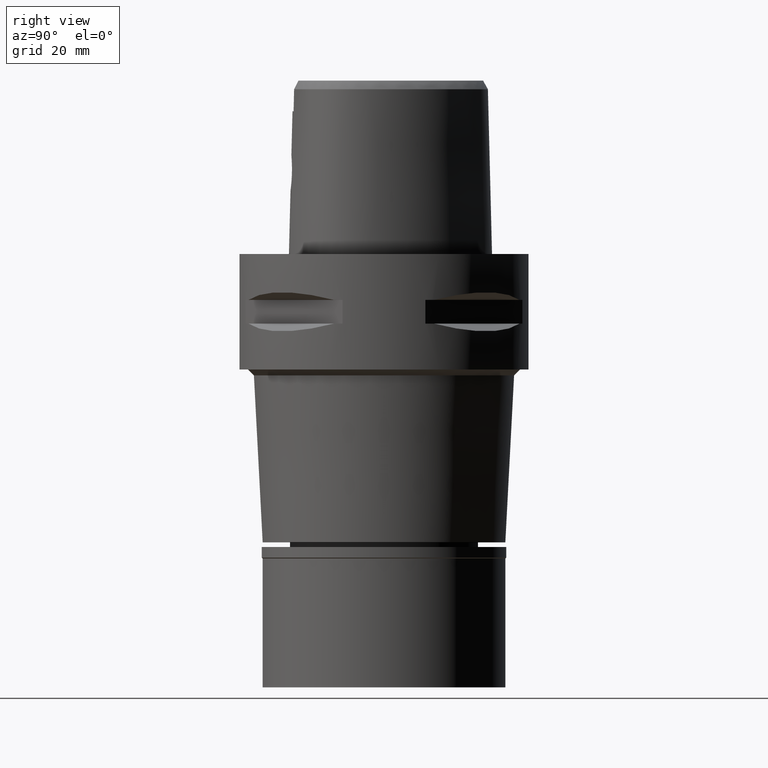
[diagram: clean part render]
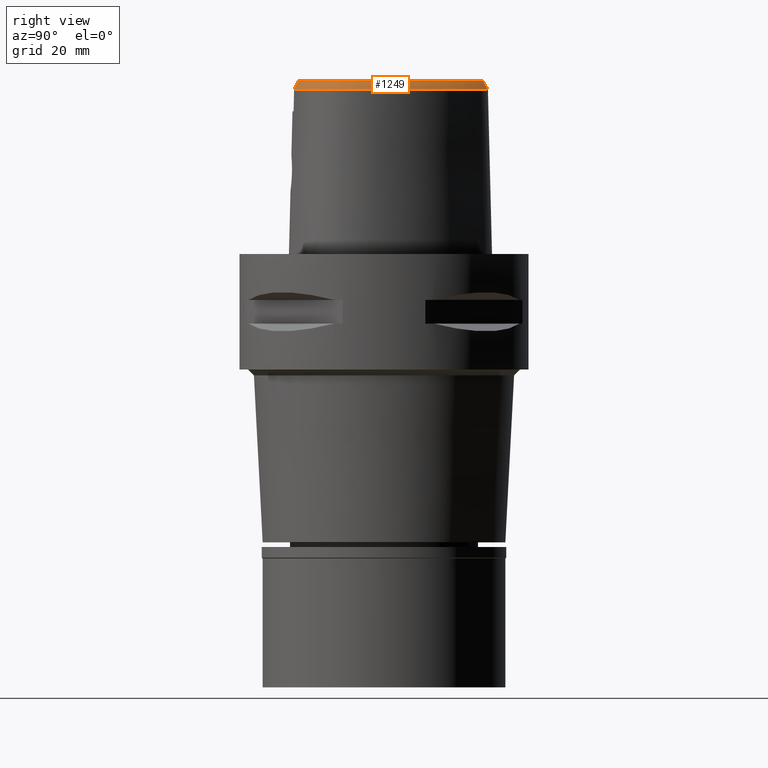
[diagram: same view with one face highlighted and labeled with its STEP entity id]
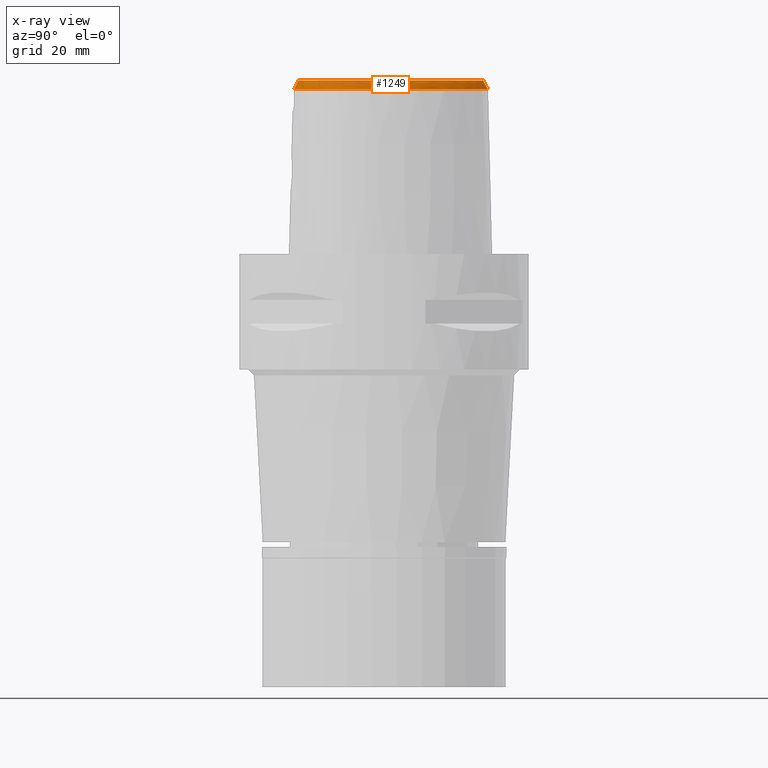
[diagram: x-ray of the same camera — body ghosted, the highlighted face saturated]
A machine part, right view. The second image highlights one B-rep face of the part: STEP entity #1249.
The next image is the same camera in x-ray: the body ghosted, the highlighted face saturated — about 0% of this face is hidden behind the body in this view.
In plain terms, the highlighted face is a freeform B-spline surface patch.
Its self-contained STEP definition (entity closure, byte-faithful):
#10 = CARTESIAN_POINT ( 'NONE',  ( 4.159771979224698768, -14.59766906204499826, 30.00000000000319744 ) ) ;
#30 = CARTESIAN_POINT ( 'NONE',  ( 14.55828366952990294, 4.114142377746004442, 30.00000000000303046 ) ) ;
#37 = CARTESIAN_POINT ( 'NONE',  ( 13.58518145072999950, -11.07622484804999985, 28.97165435128000155 ) ) ;
#52 = CARTESIAN_POINT ( 'NONE',  ( 15.90185233182718783, -0.6139199331565132756, 30.00000000000169820 ) ) ;
#60 = CARTESIAN_POINT ( 'NONE',  ( 5.636620511267000033, -15.23490497002999966, 28.39430531020000004 ) ) ;
#77 = CARTESIAN_POINT ( 'NONE',  ( 10.27891984618185184, 11.24296481357878541, 29.99999999999908340 ) ) ;
#86 = CARTESIAN_POINT ( 'NONE',  ( 3.198393493288000045, -15.30703942563000020, 28.97165483821000009 ) ) ;
#101 = EDGE_CURVE ( 'NONE', #3911, #1723, #3267, .T. ) ;
#107 = CARTESIAN_POINT ( 'NONE',  ( 6.724944731042999280, -14.30154928496000011, 29.54900578471999850 ) ) ;
#136 = CARTESIAN_POINT ( 'NONE',  ( 14.02754553531999981, -9.659741869295000782, 30.12635489120000187 ) ) ;
#162 = CARTESIAN_POINT ( 'NONE',  ( 15.25956074493000081, 2.950734948411999792, 29.54900468772000366 ) ) ;
#185 = CARTESIAN_POINT ( 'NONE',  ( 16.26668211954000043, -6.688728786193999909, 28.97165438117999869 ) ) ;
#212 = CARTESIAN_POINT ( 'NONE',  ( 15.95486192527999947, -6.601876243376000097, 29.54900466027000050 ) ) ;
#239 = CARTESIAN_POINT ( 'NONE',  ( 14.79277849044999904, 4.208539887346999464, 29.54900463723999948 ) ) ;
#265 = CARTESIAN_POINT ( 'NONE',  ( 11.83689900205000001, 10.73392656281000157, 28.39430492946000228 ) ) ;
#267 = DIRECTION ( 'NONE',  ( -2.026167864873034661E-11, -0.4887572537803078765, 0.8724198226067148010 ) ) ;
#292 = CARTESIAN_POINT ( 'NONE',  ( 5.386177464945999915, 15.80433128279000066, 29.54900646324999869 ) ) ;
#318 = CARTESIAN_POINT ( 'NONE',  ( 3.162535832260999769, 16.84371059171000340, 29.54900440379999793 ) ) ;
#342 = CARTESIAN_POINT ( 'NONE',  ( 11.57865496055999976, 10.53891767498000043, 28.97165491105999990 ) ) ;
#367 = CARTESIAN_POINT ( 'NONE',  ( 13.66559393375393050, -10.18115111193445976, 29.99999999999819877 ) ) ;
#368 = CARTESIAN_POINT ( 'NONE',  ( 13.45727162376000052, 8.334142289655000368, 28.39430420535000366 ) ) ;
#395 = CARTESIAN_POINT ( 'NONE',  ( 9.420872132874164251, 12.20574557692856210, 30.00000000001033840 ) ) ;
#404 = CARTESIAN_POINT ( 'NONE',  ( 15.84228676733546948, 3.460033425849510902, 28.52071728562183495 ) ) ;
#419 = CARTESIAN_POINT ( 'NONE',  ( 8.816245487876447129, -13.33426548781124943, 30.00000000000095568 ) ) ;
#420 = CARTESIAN_POINT ( 'NONE',  ( 0.04120385087931000001, 17.73512502171999827, 28.97165461464999936 ) ) ;
#426 = CARTESIAN_POINT ( 'NONE',  ( 6.810475384274000454, -14.61365626473999946, 28.97165694513000034 ) ) ;
#448 = CARTESIAN_POINT ( 'NONE',  ( 14.91798220929000074, -9.558002400913998997, 28.97165436094000057 ) ) ;
#466 = CARTESIAN_POINT ( 'NONE',  ( 1.774127352510906253, 16.97169788998893125, 30.00000000000295231 ) ) ;
#467 = CARTESIAN_POINT ( 'NONE',  ( -0.3198664786384000092, 17.40150216721999854, 29.54900469169000132 ) ) ;
#475 = CARTESIAN_POINT ( 'NONE',  ( 12.61028687047000041, -11.07000997088999839, 30.12635494367000177 ) ) ;
#499 = CARTESIAN_POINT ( 'NONE',  ( 5.499981877328000479, -14.60227427816999857, 29.54900499958999660 ) ) ;
#500 = CARTESIAN_POINT ( 'NONE',  ( 13.06460231238459713, -11.91950040983860326, 28.52071728562183495 ) ) ;
#519 = CARTESIAN_POINT ( 'NONE',  ( 13.22519881204000036, -11.82152390511999940, 28.39430404735999858 ) ) ;
#546 = CARTESIAN_POINT ( 'NONE',  ( 16.79005012960000087, -0.4683175930396000219, 28.39430526051000214 ) ) ;
#568 = CARTESIAN_POINT ( 'NONE',  ( 15.87207202815999985, 3.159821957095999778, 28.39430419984000054 ) ) ;
#591 = CARTESIAN_POINT ( 'NONE',  ( 14.97963747158000025, -8.215225103173999344, 30.12635496006999958 ) ) ;
#617 = CARTESIAN_POINT ( 'NONE',  ( 17.02549094405999597, -3.547194155409000071, 28.39430443214000022 ) ) ;
#647 = CARTESIAN_POINT ( 'NONE',  ( 16.56781669303000015, 0.6875131073016998995, 28.39430811817000233 ) ) ;
#661 = ORIENTED_EDGE ( 'NONE', *, *, #2614, .T. ) ;
#670 = CARTESIAN_POINT ( 'NONE',  ( 10.71967452736000048, 11.61439529569000051, 28.97165411231999954 ) ) ;
#696 = CARTESIAN_POINT ( 'NONE',  ( 1.759555337810000175, 16.90237092450999867, 30.12635490652999692 ) ) ;
#722 = CARTESIAN_POINT ( 'NONE',  ( 7.655098407063000820, 13.78990592505999935, 30.12635488931000083 ) ) ;
#742 = CARTESIAN_POINT ( 'NONE',  ( 9.840854231079999792, 12.60052413775999902, 28.97165558247999684 ) ) ;
#762 = CARTESIAN_POINT ( 'NONE',  ( 13.17991634394000044, 8.167437240502000151, 28.97165444731000150 ) ) ;
#771 = CARTESIAN_POINT ( 'NONE',  ( 4.422474504765450121, 17.08283549833562276, 28.52071728562183495 ) ) ;
#789 = CARTESIAN_POINT ( 'NONE',  ( 11.92667412982082276, 9.061218325782515848, 30.00000000000228795 ) ) ;
#795 = CARTESIAN_POINT ( 'NONE',  ( 2.403150904922999764, -15.06014885979999995, 29.54900493906999870 ) ) ;
#797 = CARTESIAN_POINT ( 'NONE',  ( 8.789956624994001544, -13.26849772566999874, 30.12635493196999903 ) ) ;
#798 = CARTESIAN_POINT ( 'NONE',  ( 1.893775678556270714, 17.84807068955530696, 28.52071728562183495 ) ) ;
#823 = CARTESIAN_POINT ( 'NONE',  ( 11.67356831991000021, -12.53663666774999896, 28.97165483650000084 ) ) ;
#833 = CARTESIAN_POINT ( 'NONE',  ( 15.71128456931488238, -6.534031654962921820, 30.00000000000482103 ) ) ;
#834 = CARTESIAN_POINT ( 'NONE',  ( 0.04262583084490000063, 18.05879023273999806, 28.39430446665000218 ) ) ;
#843 = CARTESIAN_POINT ( 'NONE',  ( 11.03515697932999906, -13.28537262831000021, 28.39430411696999812 ) ) ;
#862 = CARTESIAN_POINT ( 'NONE',  ( 1.151658985937999979, 17.00827232560000013, 30.12635495374999905 ) ) ;
#868 = CARTESIAN_POINT ( 'NONE',  ( 1.969039923823999949, -15.41851509117999974, 28.97165501015999922 ) ) ;
#870 = CARTESIAN_POINT ( 'NONE',  ( 6.896006037505000741, -14.92576324452999970, 28.39430810553999862 ) ) ;
#871 = CARTESIAN_POINT ( 'NONE',  ( 15.58740368722119385, -8.999391713746996757, 28.52071728562183495 ) ) ;
#885 = CARTESIAN_POINT ( 'NONE',  ( -0.5216482916904000566, 18.03863136296000036, 28.39430385685000147 ) ) ;
#893 = CARTESIAN_POINT ( 'NONE',  ( 13.02022816484999979, -11.57101926037000084, 28.97165434612999846 ) ) ;
#914 = CARTESIAN_POINT ( 'NONE',  ( 16.01507188675000037, -4.368455456148000238, 30.12635485425000326 ) ) ;
#941 = CARTESIAN_POINT ( 'NONE',  ( 14.95330510330999907, 2.846191444068999932, 30.12635493167000078 ) ) ;
#969 = CARTESIAN_POINT ( 'NONE',  ( 15.93604469766000342, 0.5468705579907999770, 29.54900578826999791 ) ) ;
#990 = CARTESIAN_POINT ( 'NONE',  ( 16.57063897434999689, -5.232310556972000093, 28.97165449395000181 ) ) ;
#996 = ORIENTED_EDGE ( 'NONE', *, *, #101, .F. ) ;
#1016 = CARTESIAN_POINT ( 'NONE',  ( 16.57850231379999784, -6.775581329011999721, 28.39430410208999689 ) ) ;
#1039 = CARTESIAN_POINT ( 'NONE',  ( 8.954730154375999618, 13.49146526905999899, 28.97165608609999765 ) ) ;
#1042 = CARTESIAN_POINT ( 'NONE',  ( -2.866360985331999843E-11, 17.98202997909999823, 28.52071728569000086 ) ) ;
#1063 = CARTESIAN_POINT ( 'NONE',  ( 12.62520578429000118, 7.834027142196998916, 30.12635493123999808 ) ) ;
#1076 = VERTEX_POINT ( 'NONE', #1424 ) ;
#1087 = CARTESIAN_POINT ( 'NONE',  ( 10.96713008464000083, 11.82292975005000102, 28.39430368228000034 ) ) ;
#1099 = CARTESIAN_POINT ( 'NONE',  ( 2.406543924163999648, -14.80491841401999942, 30.00000000000000000 ) ) ;
#1116 = CARTESIAN_POINT ( 'NONE',  ( 3.872355832395999897, 16.56753798631000407, 29.54900495113999526 ) ) ;
#1134 = CARTESIAN_POINT ( 'NONE',  ( 2.538962679605447192, -14.79292722369866375, 30.00000000000500933 ) ) ;
#1135 = CARTESIAN_POINT ( 'NONE',  ( 13.32121149051000053, 6.603679363826000071, 30.12635490347999934 ) ) ;
#1154 = CARTESIAN_POINT ( 'NONE',  ( 15.02033012161443182, 2.869071121501648669, 30.00000000000547473 ) ) ;
#1155 = CARTESIAN_POINT ( 'NONE',  ( 0.5642281556781999496, 17.06938930771000074, 30.12635494891999954 ) ) ;
#1164 = CARTESIAN_POINT ( 'NONE',  ( 14.77927496121000139, -10.27451375865999950, 28.39430471401000133 ) ) ;
#1181 = CARTESIAN_POINT ( 'NONE',  ( 16.11273027396801893, -2.627494158581237915, 30.00000000000432010 ) ) ;
#1189 = CARTESIAN_POINT ( 'NONE',  ( 2.082322002696000318, -14.76174497169000155, 30.12635486047000200 ) ) ;
#1191 = CARTESIAN_POINT ( 'NONE',  ( 4.148579474288999869, -14.52773712303000053, 30.12635497627000092 ) ) ;
#1202 = CARTESIAN_POINT ( 'NONE',  ( 2.412811123804728286, 16.81558681049768822, 30.00000000000554579 ) ) ;
#1209 = CARTESIAN_POINT ( 'NONE',  ( 10.13792928109999991, -13.74039216949999975, 28.39430394341000152 ) ) ;
#1221 = CARTESIAN_POINT ( 'NONE',  ( 15.29323375805328666, -7.718923543003030296, 29.99999999999998224 ) ) ;
#1229 = CARTESIAN_POINT ( 'NONE',  ( 12.00801880913000197, -11.53244931723000022, 30.12635486929000095 ) ) ;
#1230 = CARTESIAN_POINT ( 'NONE',  ( 3.168920890822999770, -15.55911073834000113, 28.52071374672999582 ) ) ;
#1249 = ADVANCED_FACE ( 'NONE', ( #2762 ), #4239, .F. ) ;
#1258 = CARTESIAN_POINT ( 'NONE',  ( 11.33007028261000038, -11.98798250957999834, 30.12635488341000212 ) ) ;
#1280 = CARTESIAN_POINT ( 'NONE',  ( 16.75475007621000145, -6.053512447975999855, 28.39430399984999909 ) ) ;
#1298 = CARTESIAN_POINT ( 'NONE',  ( 16.15132240152000165, -0.5730242835304000248, 29.54900498562999900 ) ) ;
#1325 = CARTESIAN_POINT ( 'NONE',  ( 16.36604284700000278, -7.448001050997000050, 28.39430445674999959 ) ) ;
#1349 = CARTESIAN_POINT ( 'NONE',  ( 16.25016504059000155, -5.186924622078000091, 29.54900470971999837 ) ) ;
#1375 = CARTESIAN_POINT ( 'NONE',  ( 15.09297150437999946, 4.329384658261000496, 28.97165432866999879 ) ) ;
#1401 = CARTESIAN_POINT ( 'NONE',  ( 10.07664731190000040, 12.82216704468000046, 28.39430597783999843 ) ) ;
#1424 = CARTESIAN_POINT ( 'NONE',  ( -2.866360985331999843E-11, 17.98202997909999823, 28.52071728569000086 ) ) ;
#1425 = CARTESIAN_POINT ( 'NONE',  ( 3.168920890822999770, -15.55911073834000113, 28.52071374672999582 ) ) ;
#1426 = CARTESIAN_POINT ( 'NONE',  ( 6.188419776721000076, 15.30380776327000092, 29.54900575595999968 ) ) ;
#1449 = CARTESIAN_POINT ( 'NONE',  ( 10.22476341278999890, 11.19732638698000038, 30.12635497239000060 ) ) ;
#1478 = CARTESIAN_POINT ( 'NONE',  ( 7.015729644337999282, 14.71660703144999971, 29.54900451399999994 ) ) ;
#1501 = CARTESIAN_POINT ( 'NONE',  ( 6.658132732489098871, -14.05774790738736790, 30.00000000000192912 ) ) ;
#1502 = CARTESIAN_POINT ( 'NONE',  ( 4.613421561495000489, 16.22342573945000055, 29.54900611080000061 ) ) ;
#1523 = CARTESIAN_POINT ( 'NONE',  ( 14.01089202938897849, 5.377385268371448923, 29.99999999999844391 ) ) ;
#1528 = CARTESIAN_POINT ( 'NONE',  ( 2.107581542165999799, -15.08421296649999910, 29.54900494186000159 ) ) ;
#1545 = CARTESIAN_POINT ( 'NONE',  ( 16.04058509949097910, -1.654113685488525887, 30.00000000000254374 ) ) ;
#1556 = CARTESIAN_POINT ( 'NONE',  ( 13.61391664784999911, -10.13269555792999910, 30.12635493747999860 ) ) ;
#1574 = CARTESIAN_POINT ( 'NONE',  ( 16.08569500454932921, -4.373922630229363229, 30.00000000000024869 ) ) ;
#1575 = CARTESIAN_POINT ( 'NONE',  ( 1.241429157331000122, 17.64942372610000021, 28.97165426405999966 ) ) ;
#1583 = CARTESIAN_POINT ( 'NONE',  ( 14.98044185085000102, -8.874149417314001198, 29.54900472272999679 ) ) ;
#1597 = CARTESIAN_POINT ( 'NONE',  ( 12.04928217776110522, -11.59002493206824624, 30.00000000000489209 ) ) ;
#1605 = CARTESIAN_POINT ( 'NONE',  ( 7.761316247013999359, -13.64708964559000037, 30.12635468139999873 ) ) ;
#1606 = CARTESIAN_POINT ( 'NONE',  ( 15.07117004567324869, -9.793013887526587524, 28.52071728562183495 ) ) ;
#1628 = CARTESIAN_POINT ( 'NONE',  ( 10.72582308267999984, -12.71677753964999980, 29.54900466443999818 ) ) ;
#1640 = ORIENTED_EDGE ( 'NONE', *, *, #3937, .T. ) ;
#1658 = CARTESIAN_POINT ( 'NONE',  ( 16.37826085461999881, -3.537318855253999583, 29.54900475296999929 ) ) ;
#1683 = CARTESIAN_POINT ( 'NONE',  ( 15.95150407107000312, 1.813425260090999913, 28.97165666705000220 ) ) ;
#1701 = CARTESIAN_POINT ( 'NONE',  ( 16.36528284094999819, -2.616024711796999913, 29.54900467897000027 ) ) ;
#1723 = VERTEX_POINT ( 'NONE', #1099 ) ;
#1727 = CARTESIAN_POINT ( 'NONE',  ( 15.82261077549999762, -7.947366537628000493, 28.97165467794000193 ) ) ;
#1749 = CARTESIAN_POINT ( 'NONE',  ( 15.53330887387000026, -9.211061806326998891, 28.39430432446999930 ) ) ;
#1773 = CARTESIAN_POINT ( 'NONE',  ( 14.17846492819000126, 7.059273871731999606, 28.39430455808999909 ) ) ;
#1801 = CARTESIAN_POINT ( 'NONE',  ( 5.712691861914000135, 16.36324406654000185, 28.39431052132000133 ) ) ;
#1825 = CARTESIAN_POINT ( 'NONE',  ( 6.008678730674999358, 15.03466828824999979, 30.12635463238000000 ) ) ;
#1848 = CARTESIAN_POINT ( 'NONE',  ( 9.177964260926998463, 13.72576025739000016, 28.39430676420999689 ) ) ;
#1873 = CARTESIAN_POINT ( 'NONE',  ( 10.60500548644038687, -12.49469941439547860, 29.99999999999583267 ) ) ;
#1874 = CARTESIAN_POINT ( 'NONE',  ( 13.60696263640000048, 6.755544199794999649, 29.54900478835000044 ) ) ;
#1898 = CARTESIAN_POINT ( 'NONE',  ( 0.1912597614439547344, 17.15328888648438266, 30.00000000000301981 ) ) ;
#1899 = CARTESIAN_POINT ( 'NONE',  ( 1.286314243027000259, 17.96999942634000291, 28.39430391922000041 ) ) ;
#1906 = CARTESIAN_POINT ( 'NONE',  ( 16.99625257117610744, -3.273868232426860647, 28.52071728562183495 ) ) ;
#1908 = CARTESIAN_POINT ( 'NONE',  ( 2.674237079597857392, -15.00654560863571341, 29.59847386627898302 ) ) ;
#1921 = CARTESIAN_POINT ( 'NONE',  ( 13.38374903490436907, 6.636915464740826387, 30.00000000000798650 ) ) ;
#1929 = CARTESIAN_POINT ( 'NONE',  ( 5.431662560358000214, -14.28595893223999980, 30.12635484428999888 ) ) ;
#1930 = CARTESIAN_POINT ( 'NONE',  ( 13.75951381385726258, 7.944084035686027612, 28.52071728562183495 ) ) ;
#1945 = CARTESIAN_POINT ( 'NONE',  ( 3.078265684544093439, 16.60532678262845252, 30.00000000000095213 ) ) ;
#1946 = CARTESIAN_POINT ( 'NONE',  ( 1.892722379753999817, 17.53591866029999835, 28.97165464836000126 ) ) ;
#1957 = CARTESIAN_POINT ( 'NONE',  ( 12.81525751765999921, -11.32051461562999961, 29.54900464490000189 ) ) ;
#1965 = CARTESIAN_POINT ( 'NONE',  ( -6.301949014321000775E-11, 17.15328888647999861, 30.00000000000000000 ) ) ;
#1974 = CARTESIAN_POINT ( 'NONE',  ( 14.44767169632900305, -9.224476417585497856, 29.99999999999864642 ) ) ;
#1975 = CARTESIAN_POINT ( 'NONE',  ( 0.6322687859860999238, 18.03813873621999875, 28.39430398061000105 ) ) ;
#1983 = CARTESIAN_POINT ( 'NONE',  ( 10.00048217047999977, -13.44739137544999963, 28.97165427954999828 ) ) ;
#1984 = CARTESIAN_POINT ( 'NONE',  ( -2.866360985331999843E-11, 17.98202997909999823, 28.52071728569000086 ) ) ;
#1998 = CARTESIAN_POINT ( 'NONE',  ( 0.03835989094812999878, 17.08779459967000136, 30.12635491066999904 ) ) ;
#2004 = CARTESIAN_POINT ( 'NONE',  ( 4.199721090764999332, -14.84727528049000078, 29.54900452851999759 ) ) ;
#2005 = CARTESIAN_POINT ( 'NONE',  ( 11.33338046473958549, -13.08225241901623015, 28.52071728562183495 ) ) ;
#2025 = CARTESIAN_POINT ( 'NONE',  ( 13.36430192263999928, -10.83961624512000022, 29.54900464714999941 ) ) ;
#2049 = CARTESIAN_POINT ( 'NONE',  ( 15.32850879183000004, 1.637991374402999911, 30.12635465847999683 ) ) ;
#2075 = CARTESIAN_POINT ( 'NONE',  ( 16.06076539774999645, -7.340359519163000002, 28.97165460831000061 ) ) ;
#2095 = CARTESIAN_POINT ( 'NONE',  ( 15.75548794849999901, -7.232717987330000042, 29.54900475987999897 ) ) ;
#2112 = VERTEX_POINT ( 'NONE', #1965 ) ;
#2125 = CARTESIAN_POINT ( 'NONE',  ( 15.64000643144999891, 1.725708317247000023, 29.54900566277000351 ) ) ;
#2128 = LINE ( 'NONE', #1042, #4132 ) ;
#2151 = CARTESIAN_POINT ( 'NONE',  ( 16.66046457151999860, -4.418417483715999516, 28.97165507380999827 ) ) ;
#2174 = CARTESIAN_POINT ( 'NONE',  ( 7.406187682724999277, 15.23283689185999989, 28.39430358134000087 ) ) ;
#2201 = CARTESIAN_POINT ( 'NONE',  ( 3.378295903450000193, 17.45405374418999855, 28.39430318899000127 ) ) ;
#2229 = CARTESIAN_POINT ( 'NONE',  ( 3.745042983010999915, 16.26995953691999830, 30.12635485787000178 ) ) ;
#2239 = CARTESIAN_POINT ( 'NONE',  ( 3.168920890822999770, -15.55911073834000113, 28.52071374672999582 ) ) ;
#2251 = CARTESIAN_POINT ( 'NONE',  ( 11.36765809995727494, -12.04801986072731168, 30.00000000000228795 ) ) ;
#2252 = CARTESIAN_POINT ( 'NONE',  ( 3.999668681780000234, 16.86511643571000008, 28.97165504441999673 ) ) ;
#2275 = CARTESIAN_POINT ( 'NONE',  ( 0.5691917915716130372, 17.14006060248783925, 30.00000000000531841 ) ) ;
#2276 = CARTESIAN_POINT ( 'NONE',  ( 12.67257732747999910, 9.564795333159000990, 28.39430544884000085 ) ) ;
#2285 = CARTESIAN_POINT ( 'NONE',  ( 7.523733068098718668, 15.26501041873592790, 28.52071728562183495 ) ) ;
#2302 = CARTESIAN_POINT ( 'NONE',  ( 15.51702143705241355, -7.148634146068893358, 29.99999999999501554 ) ) ;
#2310 = CARTESIAN_POINT ( 'NONE',  ( 3.236514091057999920, -15.62830462869999693, 28.39430481572000176 ) ) ;
#2334 = CARTESIAN_POINT ( 'NONE',  ( 13.14342239453999994, -10.60300764219000058, 30.12635494302999817 ) ) ;
#2349 = CARTESIAN_POINT ( 'NONE',  ( -0.3077187545992999818, 17.07822620253000068, 30.12635493055000069 ) ) ;
#2361 = CARTESIAN_POINT ( 'NONE',  ( 5.568301194296999768, -14.91858962410000089, 28.97165515490000232 ) ) ;
#2388 = CARTESIAN_POINT ( 'NONE',  ( 14.32229961077000091, -10.79691559800999912, 28.39430412588999886 ) ) ;
#2389 = CARTESIAN_POINT ( 'NONE',  ( 5.902447799198637490, -15.16907841529767964, 28.52071728562183139 ) ) ;
#2412 = CARTESIAN_POINT ( 'NONE',  ( 8.910077630152999362, -13.56900861999000085, 29.54900468662999913 ) ) ;
#2433 = CARTESIAN_POINT ( 'NONE',  ( 15.80414420152999710, -5.855335048104000961, 30.12635494739999942 ) ) ;
#2459 = CARTESIAN_POINT ( 'NONE',  ( 15.55493366657000109, -8.512211295892001317, 28.97165421263999718 ) ) ;
#2481 = CARTESIAN_POINT ( 'NONE',  ( 15.39316451831999899, 4.450229429175000639, 28.39430402010000165 ) ) ;
#2503 = CARTESIAN_POINT ( 'NONE',  ( 16.47068626555999771, -0.5206709382849999956, 28.97165512307000057 ) ) ;
#2531 = CARTESIAN_POINT ( 'NONE',  ( 16.33776822912999904, -4.393436469931999433, 29.54900496402999721 ) ) ;
#2554 = CARTESIAN_POINT ( 'NONE',  ( 6.820500625143999684, 14.45849210125000006, 30.12635498032999948 ) ) ;
#2576 = CARTESIAN_POINT ( 'NONE',  ( 2.656482849309999672, 17.68220174901000163, 28.39430400779999886 ) ) ;
#2578 = B_SPLINE_CURVE_WITH_KNOTS ( 'NONE', 3,
 ( #3874, #1898, #2275, #3030, #466, #1202, #1945, #4257, #3803, #3453, #2650, #3125, #4584, #3776, #395, #77, #3103, #789, #4649, #1921, #1523, #30, #1154, #3501, #3077, #52, #1545, #1181, #3475, #1574, #4629, #4284, #833, #2302, #1221, #3826, #2676, #1974, #3433, #367, #3051, #2751, #1597, #2251, #1873, #3408, #419, #4932, #1501, #4562, #10, #2701, #1134, #4186 ),
 .UNSPECIFIED., .F., .F.,
 ( 4, 1, 1, 1, 1, 1, 1, 1, 1, 1, 1, 1, 1, 1, 1, 1, 1, 1, 1, 1, 1, 1, 1, 1, 1, 1, 1, 1, 1, 1, 1, 1, 1, 1, 1, 1, 1, 1, 1, 1, 1, 1, 1, 1, 1, 1, 1, 1, 1, 1, 1, 4 ),
 ( 0.0000000000000000000, 0.01988587058640001182, 0.03977174117009996124, 0.05965761175399997285, 0.07954348233780006439, 0.09942935292160004490, 0.1193152235055000565, 0.1392010940893000370, 0.1590869646731999376, 0.1789728352568999981, 0.1988587058408000097, 0.2187445764247000213, 0.2386304470083999707, 0.2585163175922999823, 0.2784021881761000738, 0.2982880587598999433, 0.3181739293438000660, 0.3380597999276000465, 0.3579456705113999160, 0.3778315410952000075, 0.3977174116791000191, 0.4176032822630000307, 0.4374891528466999802, 0.4573750234305999918, 0.4772608940143999723, 0.4971467645981999528, 0.5170326351820999644, 0.5369185057659000559, 0.5568043763497000365, 0.5766902469335999371, 0.5965761175174000286, 0.6164619881012000091, 0.6363478586849999896, 0.6562337292689000012, 0.6761195998528000128, 0.6960054704364999623, 0.7158913410203999739, 0.7357772116042000654, 0.7556630821880000459, 0.7755489527718999465, 0.7954348233557000381, 0.8153206939395000186, 0.8352065645232999991, 0.8550924351072000107, 0.8749783056909999912, 0.8948641762747999717, 0.9147500468586799993, 0.9346359174424899718, 0.9545217880263200394, 0.9744076586101599879, 0.9942935291939859477, 1.000000000000000000 ),
 .UNSPECIFIED. ) ;
#2606 = CARTESIAN_POINT ( 'NONE',  ( 4.759193446332000477, 16.51239868655999743, 28.97165768864000057 ) ) ;
#2614 = EDGE_CURVE ( 'NONE', #1076, #2112, #2128, .T. ) ;
#2630 = CARTESIAN_POINT ( 'NONE',  ( 10.47221897007000102, 11.40586084133999911, 29.54900454234999785 ) ) ;
#2650 = CARTESIAN_POINT ( 'NONE',  ( 6.048015628560602153, 15.09357031579874864, 30.00000000000359535 ) ) ;
#2651 = CARTESIAN_POINT ( 'NONE',  ( 11.06216687758999839, 10.14889989933000081, 30.12635487425000136 ) ) ;
#2676 = CARTESIAN_POINT ( 'NONE',  ( 14.76450668991192572, -8.742560395149837404, 30.00000000000431655 ) ) ;
#2680 = CARTESIAN_POINT ( 'NONE',  ( 2.158100621106000094, -15.72914895611000219, 28.39430510466000257 ) ) ;
#2682 = CARTESIAN_POINT ( 'NONE',  ( 14.38988367714999939, -9.183495394643999887, 30.12635494183999896 ) ) ;
#2701 = CARTESIAN_POINT ( 'NONE',  ( 3.130495111450359857, -14.73481892792100645, 30.00000000000239453 ) ) ;
#2710 = CARTESIAN_POINT ( 'NONE',  ( 7.966932998891000928, -14.26080317577000045, 28.97165648060000009 ) ) ;
#2735 = CARTESIAN_POINT ( 'NONE',  ( 11.50181930126000118, -12.26230958865999909, 29.54900485996000015 ) ) ;
#2751 = CARTESIAN_POINT ( 'NONE',  ( 12.65514534656895762, -11.12483370674097216, 30.00000000000779465 ) ) ;
#2762 = FACE_OUTER_BOUND ( 'NONE', #3331, .T. ) ;
#2764 = CARTESIAN_POINT ( 'NONE',  ( 9.030198635310998867, -13.86951951431000118, 28.97165444128000189 ) ) ;
#2782 = CARTESIAN_POINT ( 'NONE',  ( 0.6095885758834999057, 17.71522226005000178, 28.97165430337999936 ) ) ;
#2793 = CARTESIAN_POINT ( 'NONE',  ( 12.19656242694999904, -11.79552804977000058, 29.54900491036999810 ) ) ;
#2813 = CARTESIAN_POINT ( 'NONE',  ( 16.68859282264000043, -2.601341880914000093, 28.97165442383000311 ) ) ;
#2834 = CARTESIAN_POINT ( 'NONE',  ( 15.56581638655000077, 3.055278452754000451, 28.97165444378000032 ) ) ;
#2863 = CARTESIAN_POINT ( 'NONE',  ( 16.98316091389999727, -4.443398497499999600, 28.39430518357999844 ) ) ;
#2888 = CARTESIAN_POINT ( 'NONE',  ( 16.89111290810999932, -5.277696491865000006, 28.39430427817000435 ) ) ;
#2912 = CARTESIAN_POINT ( 'NONE',  ( 13.94669030428000056, 5.347489695137000787, 30.12635485443000150 ) ) ;
#2940 = CARTESIAN_POINT ( 'NONE',  ( 8.074561966436000660, 14.28283608100000102, 28.97165478852999598 ) ) ;
#2962 = CARTESIAN_POINT ( 'NONE',  ( 2.393636181563999710, 16.74739140802999771, 30.12635494677999759 ) ) ;
#2985 = CARTESIAN_POINT ( 'NONE',  ( 8.731496047824998996, 13.25717028072000048, 29.54900540799000197 ) ) ;
#3009 = CARTESIAN_POINT ( 'NONE',  ( 7.210958663531999768, 14.97472196164999936, 28.97165404767000041 ) ) ;
#3030 = CARTESIAN_POINT ( 'NONE',  ( 1.161482229273270717, 17.07843133414447578, 30.00000000000506972 ) ) ;
#3031 = CARTESIAN_POINT ( 'NONE',  ( 4.126981531164999772, 17.16269488509999874, 28.39430513769999820 ) ) ;
#3051 = CARTESIAN_POINT ( 'NONE',  ( 13.19176257967298049, -10.65479018522654009, 30.00000000000042988 ) ) ;
#3052 = CARTESIAN_POINT ( 'NONE',  ( -0.4854021692768000218, 17.39278544644000135, 29.54900459138999835 ) ) ;
#3060 = CARTESIAN_POINT ( 'NONE',  ( 14.52869848591999968, -10.06958979554000067, 28.97165477307000003 ) ) ;
#3061 = CARTESIAN_POINT ( 'NONE',  ( 16.85489147434090285, -5.354527548487958200, 28.52071728562183495 ) ) ;
#3077 = CARTESIAN_POINT ( 'NONE',  ( 15.68929135223803861, 0.4919393172822459914, 30.00000000000551736 ) ) ;
#3085 = CARTESIAN_POINT ( 'NONE',  ( 1.922433702898000085, -14.77329646349000036, 30.12635486206999857 ) ) ;
#3087 = CARTESIAN_POINT ( 'NONE',  ( 7.864124622952999744, -13.95394641067999864, 29.54900558099999941 ) ) ;
#3103 = CARTESIAN_POINT ( 'NONE',  ( 11.11868440496116150, 10.19157821280415455, 30.00000000000159872 ) ) ;
#3112 = CARTESIAN_POINT ( 'NONE',  ( 14.70400833935000051, -8.705693222807999732, 30.12635492185999908 ) ) ;
#3125 = CARTESIAN_POINT ( 'NONE',  ( 6.863227115065352990, 14.51498137220609230, 29.99999999999675282 ) ) ;
#3126 = CARTESIAN_POINT ( 'NONE',  ( -0.3441619267167999596, 18.04805409660000137, 28.39430421396000170 ) ) ;
#3132 = CARTESIAN_POINT ( 'NONE',  ( 9.725587949250000364, -12.86138978735000116, 30.12635495183999979 ) ) ;
#3133 = CARTESIAN_POINT ( 'NONE',  ( 3.738627708319794962, -15.49270856215552783, 28.52071728562183850 ) ) ;
#3159 = CARTESIAN_POINT ( 'NONE',  ( 2.460844202780000156, -15.70450103731000091, 28.39430509471000263 ) ) ;
#3185 = CARTESIAN_POINT ( 'NONE',  ( 16.70187589933999917, -3.542256505330999783, 28.97165459256000020 ) ) ;
#3203 = CARTESIAN_POINT ( 'NONE',  ( 16.12101282642999678, -5.921394181394999734, 29.54900463155000168 ) ) ;
#3226 = CARTESIAN_POINT ( 'NONE',  ( 15.97014334914000067, -1.661505053103000007, 30.12635497501999993 ) ) ;
#3258 = CARTESIAN_POINT ( 'NONE',  ( 16.43788145131999912, -5.987453314684999306, 28.97165431570000038 ) ) ;
#3267 = B_SPLINE_CURVE_WITH_KNOTS ( 'NONE', 3,
 ( #2239, #4889, #1908, #4497 ),
 .UNSPECIFIED., .F., .F.,
 ( 4, 4 ),
 ( 0.0000000000000000000, 1.000000000000000000 ),
 .UNSPECIFIED. ) ;
#3282 = CARTESIAN_POINT ( 'NONE',  ( 16.93574622384999984, -1.560185512050999979, 28.39430364888999847 ) ) ;
#3305 = CARTESIAN_POINT ( 'NONE',  ( 12.90256106410999948, 8.000732191349001710, 29.54900468927000290 ) ) ;
#3330 = CARTESIAN_POINT ( 'NONE',  ( 3.054655796666999823, 16.53853901546999694, 30.12635501121000203 ) ) ;
#3331 = EDGE_LOOP ( 'NONE', ( #3939, #661, #1640, #996 ) ) ;
#3357 = CARTESIAN_POINT ( 'NONE',  ( 12.13617760210000185, 9.202659107824999296, 29.54900503852999805 ) ) ;
#3359 = EDGE_CURVE ( 'NONE', #1076, #3911, #4255, .T. ) ;
#3379 = CARTESIAN_POINT ( 'NONE',  ( 11.32041091908000041, 10.34390878715999840, 29.54900489265000019 ) ) ;
#3408 = CARTESIAN_POINT ( 'NONE',  ( 9.755668685252926409, -12.92551394023265132, 29.99999999999910116 ) ) ;
#3409 = CARTESIAN_POINT ( 'NONE',  ( 9.605061150258999092, 12.37888123083999936, 29.54900518711999879 ) ) ;
#3433 = CARTESIAN_POINT ( 'NONE',  ( 14.08238499151679690, -9.704590128437843077, 29.99999999999893419 ) ) ;
#3453 = CARTESIAN_POINT ( 'NONE',  ( 5.258649622039200722, 15.58603480842832667, 30.00000000000435563 ) ) ;
#3461 = CARTESIAN_POINT ( 'NONE',  ( 12.38510604475999877, -12.05860678230000005, 28.97165495144000147 ) ) ;
#3475 = CARTESIAN_POINT ( 'NONE',  ( 16.12546998862746506, -3.533461825553628533, 30.00000000000627765 ) ) ;
#3486 = CARTESIAN_POINT ( 'NONE',  ( 15.18203147536000053, -9.745255904049999529, 28.39430407048999783 ) ) ;
#3501 = CARTESIAN_POINT ( 'NONE',  ( 15.39668103801909282, 1.657188505494622710, 29.99999999999644729 ) ) ;
#3502 = CARTESIAN_POINT ( 'NONE',  ( -0.3320142026776000121, 17.72477813190999996, 28.97165445283000196 ) ) ;
#3509 = CARTESIAN_POINT ( 'NONE',  ( 8.069741374829998648, -14.56765994085999871, 28.39430738020000078 ) ) ;
#3510 = CARTESIAN_POINT ( 'NONE',  ( 0.6295828025445653342, 17.98202997637497447, 28.52071728562183495 ) ) ;
#3530 = CARTESIAN_POINT ( 'NONE',  ( 3.122152297748000294, -14.66450901950000052, 30.12635488320000121 ) ) ;
#3531 = CARTESIAN_POINT ( 'NONE',  ( 8.702202469521855832, -14.36510984286640991, 28.52071728562183495 ) ) ;
#3559 = CARTESIAN_POINT ( 'NONE',  ( 13.85004430214999971, -10.35410223796000118, 29.54900466695000105 ) ) ;
#3584 = CARTESIAN_POINT ( 'NONE',  ( 16.26300171068000111, 1.901142202936000114, 28.39430767133000089 ) ) ;
#3607 = CARTESIAN_POINT ( 'NONE',  ( 15.25687536235999886, -9.042605611821000977, 28.97165452359999804 ) ) ;
#3629 = CARTESIAN_POINT ( 'NONE',  ( 16.11982210520999814, -8.075622665031000125, 28.39430456545999704 ) ) ;
#3655 = CARTESIAN_POINT ( 'NONE',  ( 14.49258547651999862, 4.087695116433000209, 30.12635494581000017 ) ) ;
#3675 = CARTESIAN_POINT ( 'NONE',  ( 15.45021049924999978, -7.125076455496000882, 30.12635491144000000 ) ) ;
#3700 = CARTESIAN_POINT ( 'NONE',  ( 6.547901868814999915, 15.84208671331000318, 28.39430800310999814 ) ) ;
#3730 = CARTESIAN_POINT ( 'NONE',  ( 1.826138858781999774, 17.21914479241000251, 29.54900477743999687 ) ) ;
#3754 = CARTESIAN_POINT ( 'NONE',  ( 2.481251737478999964, 17.05899485501999635, 29.54900463378999831 ) ) ;
#3776 = CARTESIAN_POINT ( 'NONE',  ( 8.557117433366698833, 13.07415149352704375, 30.00000000000311218 ) ) ;
#3777 = CARTESIAN_POINT ( 'NONE',  ( 6.368160822767999996, 15.57294723829000027, 28.97165687953999935 ) ) ;
#3803 = CARTESIAN_POINT ( 'NONE',  ( 4.499552315896073296, 15.99769543814754158, 29.99999999999984013 ) ) ;
#3810 = CARTESIAN_POINT ( 'NONE',  ( 10.91764517732384476, 11.98972036053159052, 28.52071728562183495 ) ) ;
#3826 = CARTESIAN_POINT ( 'NONE',  ( 15.04259016984726038, -8.247723288183413715, 30.00000000000490630 ) ) ;
#3833 = CARTESIAN_POINT ( 'NONE',  ( 14.08617195645999942, -10.57550891798000059, 28.97165439641999996 ) ) ;
#3859 = CARTESIAN_POINT ( 'NONE',  ( 14.65393294322000095, -9.370748897779000330, 29.54900465138999976 ) ) ;
#3860 = CARTESIAN_POINT ( 'NONE',  ( 16.47905536661397718, -6.962316254603480026, 28.52071728562183495 ) ) ;
#3874 = CARTESIAN_POINT ( 'NONE',  ( -6.301949014321000775E-11, 17.15328888647999861, 30.00000000000000000 ) ) ;
#3875 = CARTESIAN_POINT ( 'NONE',  ( 1.959305900727000171, 17.85269252820000219, 28.39430451927999854 ) ) ;
#3884 = CARTESIAN_POINT ( 'NONE',  ( 3.160272895518000169, -14.98577422255999991, 29.54900486070999932 ) ) ;
#3907 = CARTESIAN_POINT ( 'NONE',  ( 1.992343034287000103, -15.74112440501999899, 28.39430508420999999 ) ) ;
#3909 = CARTESIAN_POINT ( 'NONE',  ( 14.27812201062000064, -9.864665832417999880, 29.54900483213999962 ) ) ;
#3910 = CARTESIAN_POINT ( 'NONE',  ( 14.26907046692954317, -10.79012245165969652, 28.52071728562183495 ) ) ;
#3911 = VERTEX_POINT ( 'NONE', #1425 ) ;
#3931 = CARTESIAN_POINT ( 'NONE',  ( 12.57364966257000027, -12.32168551482999952, 28.39430499251999862 ) ) ;
#3937 = EDGE_CURVE ( 'NONE', #2112, #1723, #2578, .T. ) ;
#3939 = ORIENTED_EDGE ( 'NONE', *, *, #3359, .F. ) ;
#3960 = CARTESIAN_POINT ( 'NONE',  ( 15.83195853747999848, -0.6253776287757999430, 30.12635484820000187 ) ) ;
#3987 = CARTESIAN_POINT ( 'NONE',  ( 15.62015869997000017, 0.4765492833353000002, 30.12635462332999836 ) ) ;
#4013 = CARTESIAN_POINT ( 'NONE',  ( 16.04197285925999950, -2.630707542678999644, 30.12635493411999832 ) ) ;
#4038 = CARTESIAN_POINT ( 'NONE',  ( 15.84258176406999929, -8.660704392250998751, 28.39430383892999998 ) ) ;
#4068 = CARTESIAN_POINT ( 'NONE',  ( 16.61387859894999863, -1.593958692401999944, 28.97165409092999866 ) ) ;
#4093 = CARTESIAN_POINT ( 'NONE',  ( 14.53340078982000172, 5.620691797699000070, 28.97165507232000081 ) ) ;
#4116 = CARTESIAN_POINT ( 'NONE',  ( 4.467649676656999524, 15.93445279234000012, 30.12635453296000065 ) ) ;
#4132 = VECTOR ( 'NONE', #267, 1000.000000000000000 ) ;
#4144 = CARTESIAN_POINT ( 'NONE',  ( 11.86797773940999967, 9.021590995159000315, 30.12635483338000242 ) ) ;
#4168 = CARTESIAN_POINT ( 'NONE',  ( 13.89271378229999954, 6.907409035763000027, 28.97165467322000154 ) ) ;
#4186 = CARTESIAN_POINT ( 'NONE',  ( 2.406543924163999648, -14.80491841401999942, 30.00000000000000000 ) ) ;
#4187 = CARTESIAN_POINT ( 'NONE',  ( 12.40437746478999870, 9.383727220492001919, 28.97165524368000078 ) ) ;
#4217 = CARTESIAN_POINT ( 'NONE',  ( 2.374304255994000190, -14.73797277104999992, 30.12635486125000384 ) ) ;
#4219 = CARTESIAN_POINT ( 'NONE',  ( 9.863035059867000243, -13.15439058139999950, 29.54900461570000303 ) ) ;
#4239 = B_SPLINE_SURFACE_WITH_KNOTS ( 'NONE', 3, 3, ( 
 ( #3085, #4292, #868, #3907 ),
 ( #1189, #1528, #4588, #2680 ),
 ( #4217, #795, #4636, #3159 ),
 ( #3530, #3884, #86, #2310 ),
 ( #1191, #2004, #4590, #4614 ),
 ( #1929, #499, #2361, #60 ),
 ( #4317, #107, #426, #870 ),
 ( #1605, #3087, #2710, #3509 ),
 ( #797, #2412, #2764, #4265 ),
 ( #3132, #4219, #1983, #1209 ),
 ( #4657, #1628, #4244, #843 ),
 ( #1258, #2735, #823, #4686 ),
 ( #1229, #2793, #3461, #3931 ),
 ( #475, #1957, #893, #519 ),
 ( #2334, #2025, #37, #4294 ),
 ( #1556, #3559, #3833, #2388 ),
 ( #136, #3909, #3060, #1164 ),
 ( #2682, #3859, #448, #3486 ),
 ( #3112, #1583, #3607, #1749 ),
 ( #591, #4712, #2459, #4038 ),
 ( #4362, #4756, #1727, #3629 ),
 ( #3675, #2095, #2075, #1325 ),
 ( #4337, #212, #185, #1016 ),
 ( #2433, #3203, #3258, #1280 ),
 ( #4783, #1349, #990, #2888 ),
 ( #914, #2531, #2151, #2863 ),
 ( #4391, #1658, #3185, #617 ),
 ( #4013, #1701, #2813, #4730 ),
 ( #3226, #4413, #4068, #3282 ),
 ( #3960, #1298, #2503, #546 ),
 ( #3987, #969, #4805, #647 ),
 ( #2049, #2125, #1683, #3584 ),
 ( #941, #162, #2834, #568 ),
 ( #3655, #239, #1375, #2481 ),
 ( #2912, #4437, #4093, #4511 ),
 ( #1135, #1874, #4168, #1773 ),
 ( #1063, #3305, #762, #368 ),
 ( #4144, #3357, #4187, #2276 ),
 ( #2651, #3379, #342, #265 ),
 ( #1449, #2630, #670, #1087 ),
 ( #4827, #3409, #742, #1401 ),
 ( #4906, #2985, #1039, #1848 ),
 ( #722, #4881, #2940, #4463 ),
 ( #2554, #1478, #3009, #2174 ),
 ( #1825, #1426, #3777, #3700 ),
 ( #4933, #292, #4563, #1801 ),
 ( #4116, #1502, #2606, #4539 ),
 ( #2229, #1116, #2252, #3031 ),
 ( #3330, #318, #4856, #2201 ),
 ( #2962, #3754, #4489, #2576 ),
 ( #696, #3730, #1946, #3875 ),
 ( #862, #4310, #1575, #1899 ),
 ( #1155, #4630, #2782, #1975 ),
 ( #1998, #4585, #420, #834 ),
 ( #2349, #467, #3502, #3126 ),
 ( #4607, #3052, #4677, #885 ) ),
 .UNSPECIFIED., .F., .F., .F.,
 ( 4, 1, 1, 1, 1, 1, 1, 1, 1, 1, 1, 1, 1, 1, 1, 1, 1, 1, 1, 1, 1, 1, 1, 1, 1, 1, 1, 1, 1, 1, 1, 1, 1, 1, 1, 1, 1, 1, 1, 1, 1, 1, 1, 1, 1, 1, 1, 1, 1, 1, 1, 1, 1, 4 ),
 ( 4, 4 ),
 ( -0.006850724150829000207, 0.0000000000000000000, 0.005706470806014000280, 0.02559234138984000165, 0.04547821197368000223, 0.06536408255751000040, 0.08524995314132000068, 0.1051358237252000005, 0.1250216943090000088, 0.1449075648927999893, 0.1647934354767000009, 0.1846793060604999814, 0.2045651766443000175, 0.2244510472280999980, 0.2443369178119999818, 0.2642227883957999901, 0.2841086589796000261, 0.3039945295635000377, 0.3238804001471999872, 0.3437662707310999988, 0.3636521413150000104, 0.3835380118987999909, 0.4034238824826000269, 0.4233097530664000074, 0.4431956236502999635, 0.4630814942340999996, 0.4829673648179000356, 0.5028532354018000472, 0.5227391059856000277, 0.5426249765694000082, 0.5625108471533000198, 0.5823967177369999693, 0.6022825883208999809, 0.6221684589047999925, 0.6420543294886000840, 0.6619402000723999535, 0.6818260706561999340, 0.7017119412401000567, 0.7215978118238999262, 0.7414836824077000177, 0.7613695529916000293, 0.7812554235752999787, 0.8011412941591999903, 0.8210271647431000019, 0.8409130353268000624, 0.8607989059106999630, 0.8806847764944999435, 0.9005706470783999551, 0.9204565176621999356, 0.9403423882460000272, 0.9602282588299000388, 0.9801141294135999882, 1.000000000000000000, 1.016057694064999906 ),
 ( -0.06289986200647999792, 1.062932094563999952 ),
 .UNSPECIFIED. ) ;
#4244 = CARTESIAN_POINT ( 'NONE',  ( 10.88049003100000078, -13.00107508398000000, 28.97165439070999682 ) ) ;
#4245 = CARTESIAN_POINT ( 'NONE',  ( 16.79165444019533737, -0.3537785292840521234, 28.52071728562183495 ) ) ;
#4255 = B_SPLINE_CURVE_WITH_KNOTS ( 'NONE', 3,
 ( #1984, #3510, #798, #771, #2285, #3810, #1930, #404, #4245, #1906, #3061, #3860, #4658, #871, #1606, #3910, #500, #2005, #3531, #2389, #3133, #1230 ),
 .UNSPECIFIED., .F., .F.,
 ( 4, 1, 1, 1, 1, 1, 1, 1, 1, 1, 1, 1, 1, 1, 1, 1, 1, 1, 1, 4 ),
 ( 0.0000000000000000000, 0.04404152929334483740, 0.08808305858542123112, 0.1761661171698911121, 0.2642491757542553832, 0.3523322343386196542, 0.4404152929230895075, 0.5284983515073480298, 0.5725398807996359141, 0.6165814100917123008, 0.6606229393838943809, 0.6826437040299854209, 0.7046644686761821541, 0.7266852333222733051, 0.7487059979682585409, 0.7927475272605464252, 0.8367890565527285052, 0.8808305858448050030, 0.9689136444292536510, 1.000000000000000000 ),
 .UNSPECIFIED. ) ;
#4257 = CARTESIAN_POINT ( 'NONE',  ( 3.772905803807628633, 16.33508552418969373, 30.00000000000714451 ) ) ;
#4265 = CARTESIAN_POINT ( 'NONE',  ( 9.150319640469000149, -14.17003040862999974, 28.39430419593000110 ) ) ;
#4284 = CARTESIAN_POINT ( 'NONE',  ( 15.87349190487884520, -5.869792298898072858, 29.99999999999977618 ) ) ;
#4292 = CARTESIAN_POINT ( 'NONE',  ( 1.945736813361000017, -15.09590577733999872, 29.54900493611999934 ) ) ;
#4294 = CARTESIAN_POINT ( 'NONE',  ( 13.80606097883000061, -11.31283345099000037, 28.39430405539999924 ) ) ;
#4310 = CARTESIAN_POINT ( 'NONE',  ( 1.196544071635000206, 17.32884802585000017, 29.54900460891000336 ) ) ;
#4317 = CARTESIAN_POINT ( 'NONE',  ( 6.639414077812000770, -13.98944230516999987, 30.12635462432000111 ) ) ;
#4337 = CARTESIAN_POINT ( 'NONE',  ( 15.64304173102000206, -6.515023700557999398, 30.12635493935999875 ) ) ;
#4362 = CARTESIAN_POINT ( 'NONE',  ( 15.22818811609000100, -7.690854282821000254, 30.12635490289000018 ) ) ;
#4391 = CARTESIAN_POINT ( 'NONE',  ( 16.05464580990999934, -3.532381205176999828, 30.12635491338999927 ) ) ;
#4413 = CARTESIAN_POINT ( 'NONE',  ( 16.29201097404000009, -1.627731872752000042, 29.54900453297999974 ) ) ;
#4437 = CARTESIAN_POINT ( 'NONE',  ( 14.24004554704999848, 5.484090746417999540, 29.54900496337999627 ) ) ;
#4463 = CARTESIAN_POINT ( 'NONE',  ( 8.284293746122999735, 14.52930115897000007, 28.39430473815000155 ) ) ;
#4489 = CARTESIAN_POINT ( 'NONE',  ( 2.568867293394999862, 17.37059830201999944, 28.97165432079000169 ) ) ;
#4497 = CARTESIAN_POINT ( 'NONE',  ( 2.406543924163999648, -14.80491841401999942, 30.00000000000000000 ) ) ;
#4511 = CARTESIAN_POINT ( 'NONE',  ( 14.82675603258999963, 5.757292848979999711, 28.39430518125999825 ) ) ;
#4539 = CARTESIAN_POINT ( 'NONE',  ( 4.904965331170000553, 16.80137163366999786, 28.39430926647999698 ) ) ;
#4562 = CARTESIAN_POINT ( 'NONE',  ( 5.446614459517257423, -14.35518554873197594, 30.00000000000259703 ) ) ;
#4563 = CARTESIAN_POINT ( 'NONE',  ( 5.549434663429999581, 16.08378767466000170, 28.97165849228999690 ) ) ;
#4584 = CARTESIAN_POINT ( 'NONE',  ( 7.700998872106450399, 13.84384558891389716, 30.00000000000654410 ) ) ;
#4585 = CARTESIAN_POINT ( 'NONE',  ( 0.03978187091372000633, 17.41145981068999760, 29.54900476265999743 ) ) ;
#4588 = CARTESIAN_POINT ( 'NONE',  ( 2.132841081636000169, -15.40668096131000020, 28.97165502326000208 ) ) ;
#4590 = CARTESIAN_POINT ( 'NONE',  ( 4.250862707240000482, -15.16681343796000192, 28.97165408077999871 ) ) ;
#4607 = CARTESIAN_POINT ( 'NONE',  ( -0.4672791080701000355, 17.06986248817999652, 30.12635495865000124 ) ) ;
#4614 = CARTESIAN_POINT ( 'NONE',  ( 4.302004323715999945, -15.48635159542999951, 28.39430363302999893 ) ) ;
#4629 = CARTESIAN_POINT ( 'NONE',  ( 15.99982784345543863, -5.151471542954241478, 30.00000000000056843 ) ) ;
#4630 = CARTESIAN_POINT ( 'NONE',  ( 0.5869083657808999988, 17.39230578387999770, 29.54900462615000123 ) ) ;
#4636 = CARTESIAN_POINT ( 'NONE',  ( 2.431997553850999694, -15.38232494854999999, 28.97165501688999711 ) ) ;
#4649 = CARTESIAN_POINT ( 'NONE',  ( 12.68590586677168197, 7.870511070825236821, 30.00000000000880718 ) ) ;
#4657 = CARTESIAN_POINT ( 'NONE',  ( 10.57115613434999979, -12.43247999531000048, 30.12635493818000043 ) ) ;
#4658 = CARTESIAN_POINT ( 'NONE',  ( 16.01658383235042393, -8.155509186612809103, 28.52071728562183495 ) ) ;
#4677 = CARTESIAN_POINT ( 'NONE',  ( -0.5035252304835999837, 17.71570840469999908, 28.97165422411999813 ) ) ;
#4686 = CARTESIAN_POINT ( 'NONE',  ( 11.84531733856000102, -12.81096374682999972, 28.39430481303999798 ) ) ;
#4712 = CARTESIAN_POINT ( 'NONE',  ( 15.26728556906999934, -8.363718199532998554, 29.54900458635000149 ) ) ;
#4730 = CARTESIAN_POINT ( 'NONE',  ( 17.01190280431999824, -2.586659050031999918, 28.39430416869000240 ) ) ;
#4756 = CARTESIAN_POINT ( 'NONE',  ( 15.52539944579999975, -7.819110410223999885, 29.54900479041999972 ) ) ;
#4783 = CARTESIAN_POINT ( 'NONE',  ( 15.92969110682999911, -5.141538687184000089, 30.12635492549999938 ) ) ;
#4805 = CARTESIAN_POINT ( 'NONE',  ( 16.25193069533999690, 0.6171918326462000337, 28.97165695322000190 ) ) ;
#4827 = CARTESIAN_POINT ( 'NONE',  ( 9.369268069437000079, 12.15723832391999970, 30.12635479175999720 ) ) ;
#4856 = CARTESIAN_POINT ( 'NONE',  ( 3.270415867856000247, 17.14888216794999920, 28.97165379638999738 ) ) ;
#4881 = CARTESIAN_POINT ( 'NONE',  ( 7.864830186750000784, 14.03637100303000018, 29.54900483891999841 ) ) ;
#4889 = CARTESIAN_POINT ( 'NONE',  ( 2.935843368219845040, -15.25651436816901807, 29.10537844852231615 ) ) ;
#4906 = CARTESIAN_POINT ( 'NONE',  ( 8.508261941273000062, 13.02287529238000019, 30.12635472986999829 ) ) ;
#4932 = CARTESIAN_POINT ( 'NONE',  ( 7.783816186093345912, -13.71424622167200624, 30.00000000000486722 ) ) ;
#4933 = CARTESIAN_POINT ( 'NONE',  ( 5.222920266463000338, 15.52487489090999873, 30.12635443421999781 ) ) ;